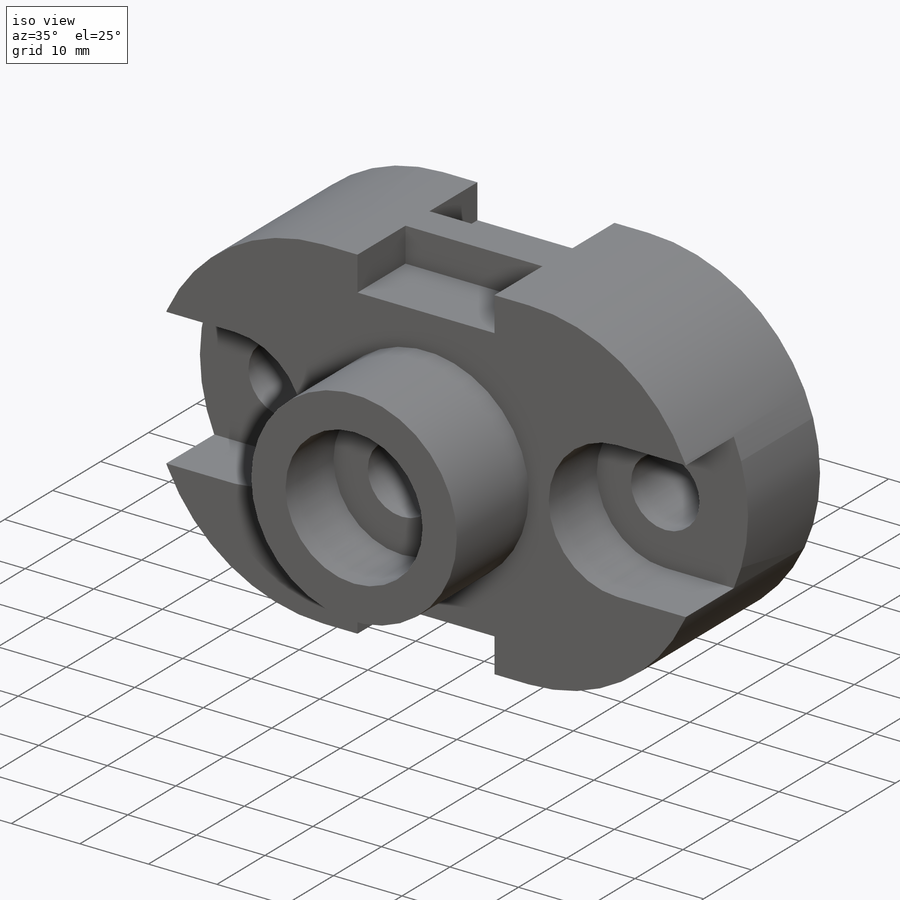
[diagram: iso view]
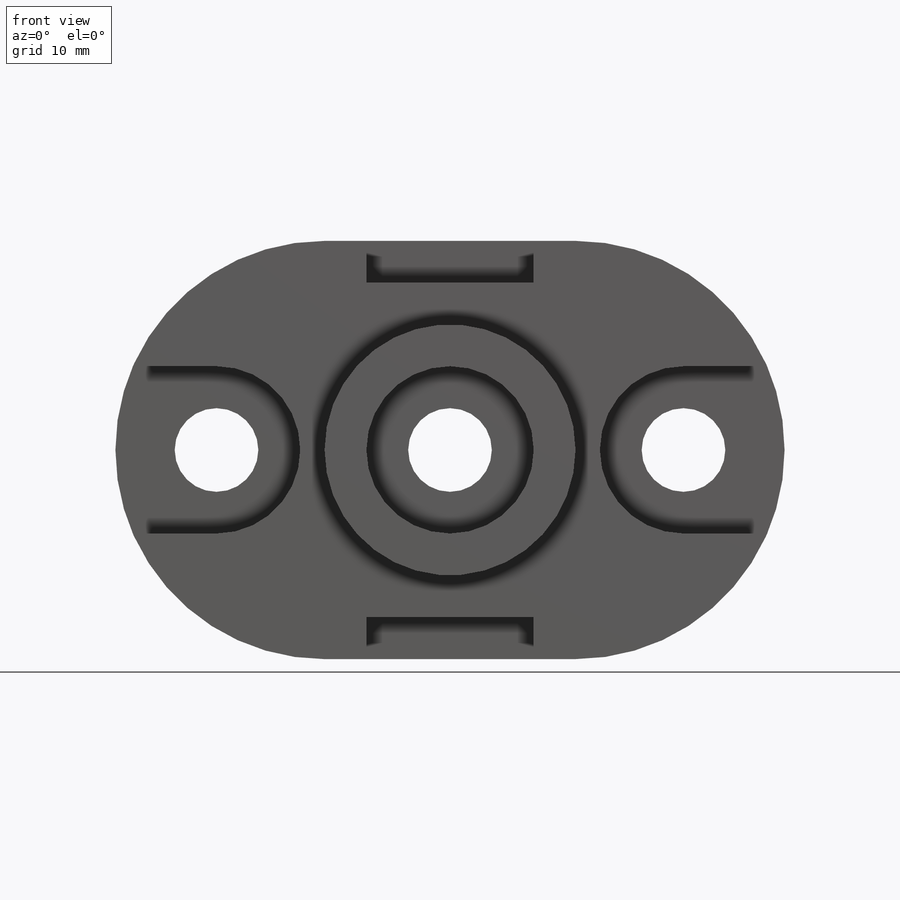
[diagram: front view]
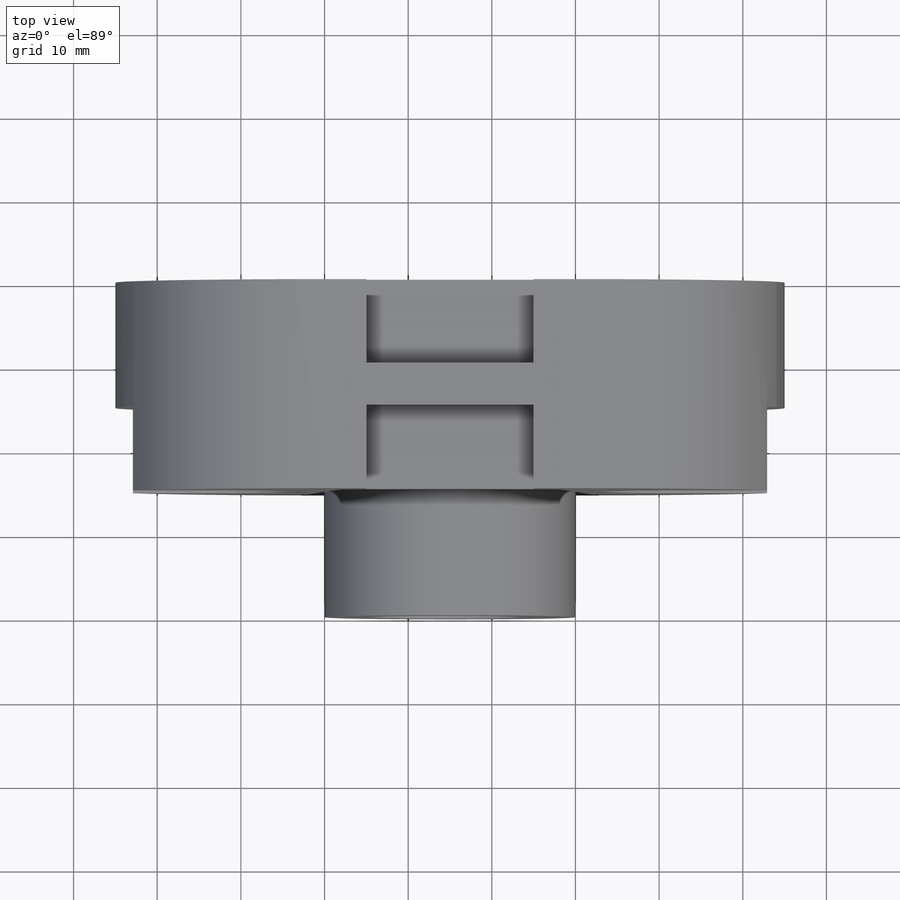
[diagram: top view]
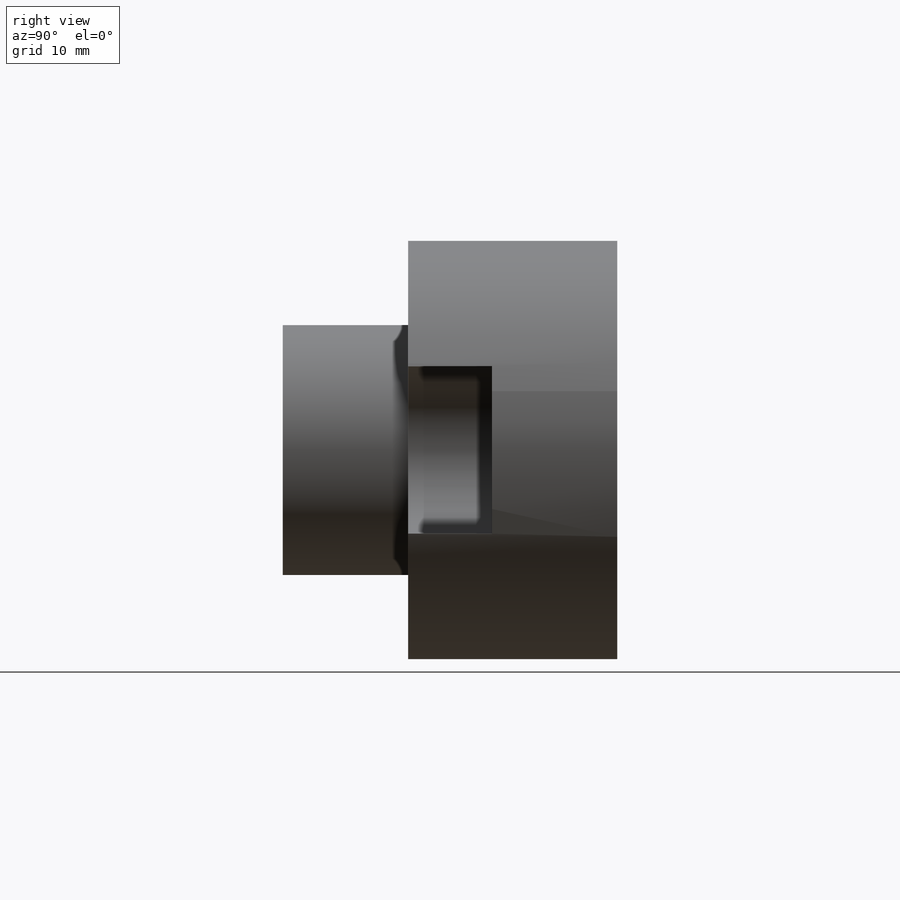
[diagram: right view]
SOLIDWORKS PART (.sldprt)
format: sldprt  version: not decoded by parser v0  size: 275,968 bytes
history: native  units: mm
features: sketch x8, cut_extrude x6, extrude x2, material x1 (+13 scaffold rows collapsed)
feature tree (30):
  scaffold x13  (default folders/planes/origin — collapsed)
  material  "Material <not specified>"
  sketch  "Sketch1"  dims[c1.D2=25.0mm c1.D3=25.0mm c1.D1=30.0mm c2.D2=30.0mm]
  extrude  "Boss-Extrude2"  Depth=25mm
  sketch  "Sketch2"  dims[D1=5.0mm D2=20.0mm D3=5.0mm D4=5.0mm D5=20.0mm]
  cut_extrude  "Cut-Extrude2"  Depth=10mm
  sketch  "Sketch3"  dims[D1=20.0mm D2=5.0mm D3=5.0mm D4=20.0mm D5=5.0mm D6=5.0mm]
  cut_extrude  "Cut-Extrude3"  Depth=10mm
  sketch  "Sketch4"  dims[D1=30.0mm D2=20.0mm D3=10.0mm]
  extrude  "Boss-Extrude3"  Depth=15mm
  sketch  "Sketch5"  dims[D1=20.0mm]
  cut_extrude  "Cut-Extrude4"  Depth=10mm
  sketch  "Sketch6"  dims[D1=10.0mm]
  cut_extrude  "Cut-Extrude9"  Depth=300mm
  sketch  "Sketch8"  dims[c1.D1=25.0mm c1.D2=10.0mm c1.D3=25.0mm c1.D4=25.0mm c1.D5=10.0mm c2.D1=10.0mm c2.D2=10.0mm c2.D4=~12.508739mm c2.D6=10.0mm]
  cut_extrude  "Cut-Extrude10"  Depth=10mm
  sketch  "Sketch9"  dims[D1=10.0mm D2=10.0mm]
  cut_extrude  "Cut-Extrude11"  Depth=70mm
decode coverage: 16 of 16 modeling features carry decoded parameters
note: ~ marks probable driven/reference dimensions
note: suppression state not decoded; provenance and decode notes live in map.json
